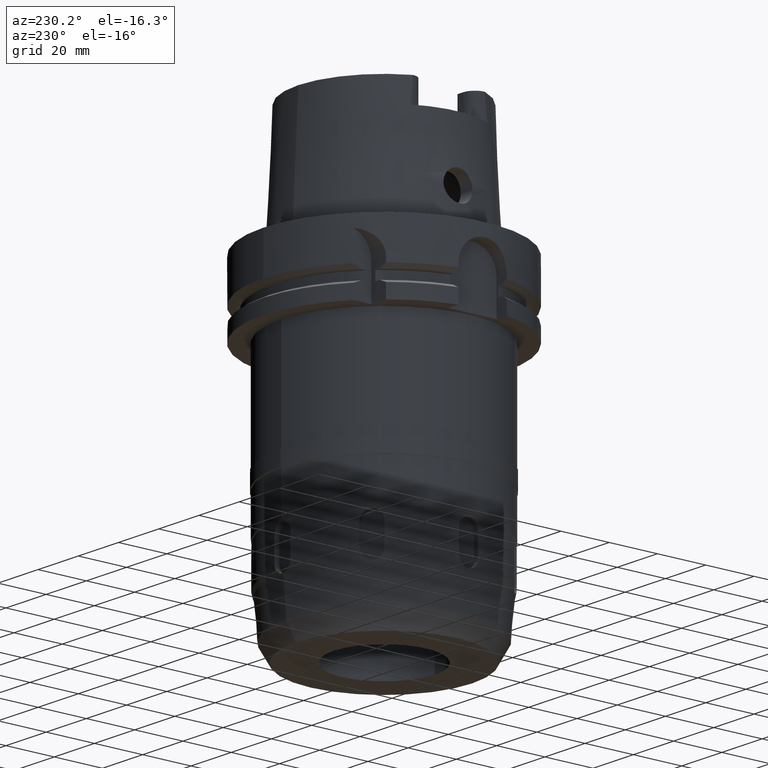
[diagram: clean part render]
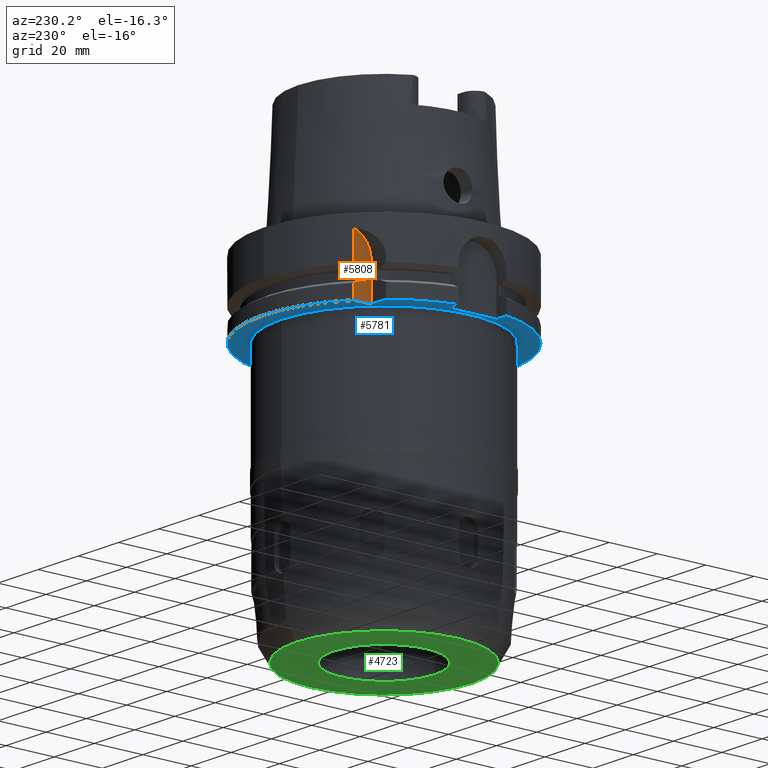
[diagram: same view with three faces highlighted in distinct colors, each labeled with its STEP entity id]
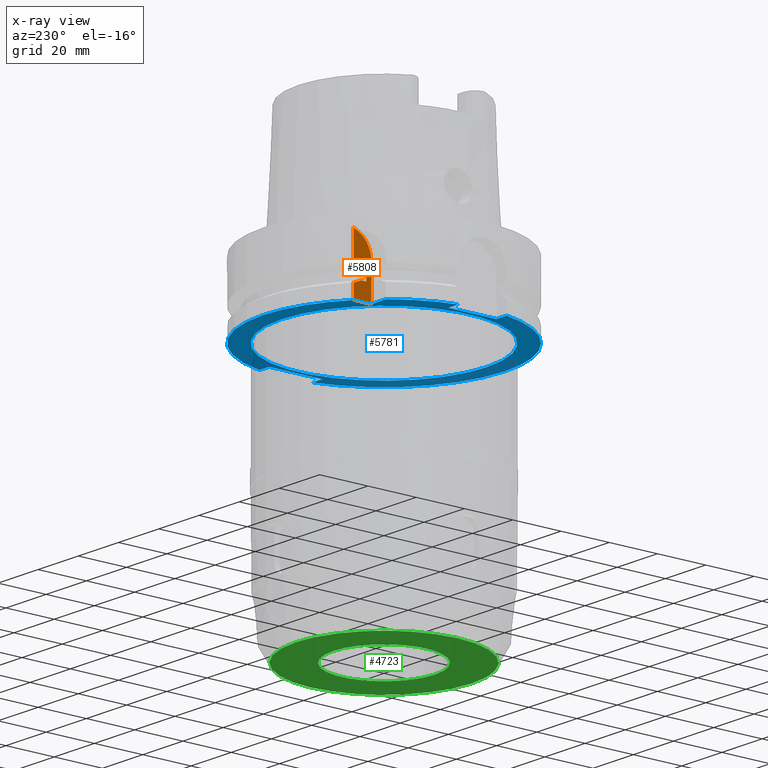
[diagram: x-ray of the same camera — body ghosted, the three highlighted faces saturated]
A machine part, auxiliary view with three faces highlighted in distinct colors.
The next image is the same camera in x-ray (body ghosted, the three faces saturated) — at least one of them is partly hidden behind the body in this view.
Their STEP definitions:

[orange] entity #5808 — the highlighted planar face has unit normal (1, 0, 0).
#2618=DIRECTION('',(4.798503851106E-14,1.E0,0.E0));
#2619=VECTOR('',#2618,7.329756630709E0);
#2620=CARTESIAN_POINT('',(-3.15E1,3.15E1,-2.9E1));
#2621=LINE('',#2620,#2619);
#2625=DIRECTION('',(-4.433903906541E-7,9.999999999999E-1,9.391792532212E-14));
#2626=VECTOR('',#2625,2.194015601002E0);
#2627=CARTESIAN_POINT('',(-3.15E1,3.352238058372E1,-1.8125E1));
#2628=LINE('',#2627,#2626);
#2632=CARTESIAN_POINT('',(-3.150000097281E1,3.571639618472E1,-1.8125E1));
#2633=CARTESIAN_POINT('',(-3.150000097281E1,3.606333863821E1,
-1.797477179943E1));
#2634=CARTESIAN_POINT('',(-3.150000002064E1,3.675646915239E1,
-1.767266204693E1));
#2635=CARTESIAN_POINT('',(-3.149999846856E1,3.779429574907E1,
-1.721518165955E1));
#2636=CARTESIAN_POINT('',(-3.150000355959E1,3.848477495946E1,
-1.690706900025E1));
#2637=CARTESIAN_POINT('',(-3.150000355959E1,3.882975374305E1,
-1.675239179145E1));
#2642=CARTESIAN_POINT('',(-3.15E1,4.15E1,-1.463689785921E1));
#2643=DIRECTION('',(1.E0,0.E0,0.E0));
#2644=DIRECTION('',(0.E0,-2.670243369290E-1,9.636897859206E-1));
#2645=AXIS2_PLACEMENT_3D('',#2642,#2643,#2644);
#2650=DIRECTION('',(6.188494047475E-7,5.020316378014E-7,-9.999999999997E-1));
#2651=VECTOR('',#2650,5.752391791881E0);
#2652=CARTESIAN_POINT('',(-3.150000355986E1,3.882975374283E1,
-2.324760820812E1));
#2653=LINE('',#2652,#2651);
#2815=DIRECTION('',(0.E0,0.E0,1.E0));
#2816=VECTOR('',#2815,1.436310214079E1);
#2817=CARTESIAN_POINT('',(-3.15E1,3.15E1,-2.9E1));
#2818=LINE('',#2817,#2816);
#2846=DIRECTION('',(-3.028823767049E-7,-2.457085509676E-7,-9.999999999999E-1));
#2847=VECTOR('',#2846,1.175239179145E1);
#2848=CARTESIAN_POINT('',(-3.15E1,3.882975663071E1,-5.000000000003E0));
#2849=LINE('',#2848,#2847);
#2966=DIRECTION('',(0.E0,0.E0,-1.E0));
#2967=VECTOR('',#2966,3.75E0);
#2968=CARTESIAN_POINT('',(-3.15E1,3.352238058372E1,-1.8125E1));
#2969=LINE('',#2968,#2967);
#2980=DIRECTION('',(-4.434271693799E-7,9.999999999999E-1,-9.229865077722E-14));
#2981=VECTOR('',#2980,2.194015600297E0);
#2982=CARTESIAN_POINT('',(-3.15E1,3.352238058372E1,-2.1875E1));
#2983=LINE('',#2982,#2981);
#3019=CARTESIAN_POINT('',(-3.150000097289E1,3.571639618402E1,-2.1875E1));
#3020=CARTESIAN_POINT('',(-3.150000097289E1,3.605789002737E1,
-2.202286891912E1));
#3021=CARTESIAN_POINT('',(-3.150000002063E1,3.674380017621E1,
-2.232173054124E1));
#3022=CARTESIAN_POINT('',(-3.149999846845E1,3.778158713267E1,
-2.277929841516E1));
#3023=CARTESIAN_POINT('',(-3.150000355986E1,3.847935690318E1,
-2.309050172011E1));
#3024=CARTESIAN_POINT('',(-3.150000355986E1,3.882975374283E1,
-2.324760820812E1));
#3867=CARTESIAN_POINT('',(-3.15E1,3.15E1,-2.9E1));
#3868=CARTESIAN_POINT('',(-3.15E1,3.882975663071E1,-2.9E1));
#3869=VERTEX_POINT('',#3867);
#3870=VERTEX_POINT('',#3868);
#3893=CARTESIAN_POINT('',(-3.150000355986E1,3.882975374283E1,
-2.324760820812E1));
#3894=VERTEX_POINT('',#3893);
#3895=VERTEX_POINT('',#3019);
#3896=CARTESIAN_POINT('',(-3.15E1,3.352238058372E1,-2.1875E1));
#3897=VERTEX_POINT('',#3896);
#3898=CARTESIAN_POINT('',(-3.15E1,3.352238058372E1,-1.8125E1));
#3899=VERTEX_POINT('',#3898);
#3900=CARTESIAN_POINT('',(-3.150000097281E1,3.571639618472E1,-1.8125E1));
#3901=VERTEX_POINT('',#3900);
#3902=VERTEX_POINT('',#2637);
#3903=CARTESIAN_POINT('',(-3.15E1,3.882975663071E1,-5.000000000003E0));
#3904=VERTEX_POINT('',#3903);
#3905=CARTESIAN_POINT('',(-3.15E1,3.15E1,-1.463689785921E1));
#3906=VERTEX_POINT('',#3905);
#5782=CARTESIAN_POINT('',(-3.15E1,0.E0,0.E0));
#5783=DIRECTION('',(1.E0,0.E0,0.E0));
#5784=DIRECTION('',(0.E0,0.E0,1.E0));
#5785=AXIS2_PLACEMENT_3D('',#5782,#5783,#5784);
#5786=PLANE('',#5785);
#5787=ORIENTED_EDGE('',*,*,#5749,.T.);
#5789=ORIENTED_EDGE('',*,*,#5788,.F.);
#5791=ORIENTED_EDGE('',*,*,#5790,.F.);
#5793=ORIENTED_EDGE('',*,*,#5792,.F.);
#5795=ORIENTED_EDGE('',*,*,#5794,.F.);
#5797=ORIENTED_EDGE('',*,*,#5796,.T.);
#5799=ORIENTED_EDGE('',*,*,#5798,.T.);
#5801=ORIENTED_EDGE('',*,*,#5800,.F.);
#5803=ORIENTED_EDGE('',*,*,#5802,.T.);
#5805=ORIENTED_EDGE('',*,*,#5804,.F.);
#5806=EDGE_LOOP('',(#5787,#5789,#5791,#5793,#5795,#5797,#5799,#5801,#5803,
#5805));
#5807=FACE_OUTER_BOUND('',#5806,.F.);
#2638=B_SPLINE_CURVE_WITH_KNOTS('',3,(#2632,#2633,#2634,#2635,#2636,#2637),
.UNSPECIFIED.,.F.,.F.,(4,1,1,4),(0.E0,3.333333333333E-1,6.666666666667E-1,1.E0),
.UNSPECIFIED.);
#2646=CIRCLE('',#2645,1.E1);
#3025=B_SPLINE_CURVE_WITH_KNOTS('',3,(#3019,#3020,#3021,#3022,#3023,#3024),
.UNSPECIFIED.,.F.,.F.,(4,1,1,4),(0.E0,3.333333333333E-1,6.666666666667E-1,1.E0),
.UNSPECIFIED.);
#5749=EDGE_CURVE('',#3869,#3870,#2621,.T.);
#5788=EDGE_CURVE('',#3894,#3870,#2653,.T.);
#5790=EDGE_CURVE('',#3895,#3894,#3025,.T.);
#5792=EDGE_CURVE('',#3897,#3895,#2983,.T.);
#5794=EDGE_CURVE('',#3899,#3897,#2969,.T.);
#5796=EDGE_CURVE('',#3899,#3901,#2628,.T.);
#5798=EDGE_CURVE('',#3901,#3902,#2638,.T.);
#5800=EDGE_CURVE('',#3904,#3902,#2849,.T.);
#5802=EDGE_CURVE('',#3904,#3906,#2646,.T.);
#5804=EDGE_CURVE('',#3869,#3906,#2818,.T.);
#5808=ADVANCED_FACE('',(#5807),#5786,.F.);

[blue] entity #5781 — the highlighted planar face has unit normal (0, 0, 1).
#2541=DIRECTION('',(-1.E0,-4.798503851106E-14,0.E0));
#2542=VECTOR('',#2541,7.329756630709E0);
#2543=CARTESIAN_POINT('',(-3.15E1,3.15E1,-2.9E1));
#2544=LINE('',#2543,#2542);
#2548=CARTESIAN_POINT('',(0.E0,0.E0,-2.9E1));
#2549=DIRECTION('',(0.E0,0.E0,1.E0));
#2550=DIRECTION('',(-7.765951326142E-1,6.3E-1,0.E0));
#2551=AXIS2_PLACEMENT_3D('',#2548,#2549,#2550);
#2556=DIRECTION('',(-1.E0,-4.627973610177E-14,0.E0));
#2557=VECTOR('',#2556,4.989794855662E0);
#2558=CARTESIAN_POINT('',(-4.4E1,-1.E1,-2.9E1));
#2559=LINE('',#2558,#2557);
#2563=CARTESIAN_POINT('',(0.E0,0.E0,-2.9E1));
#2564=DIRECTION('',(0.E0,0.E0,1.E0));
#2565=DIRECTION('',(-9.797958971133E-1,-2.E-1,0.E0));
#2566=AXIS2_PLACEMENT_3D('',#2563,#2564,#2565);
#2571=CARTESIAN_POINT('',(0.E0,0.E0,-2.9E1));
#2572=DIRECTION('',(0.E0,0.E0,1.E0));
#2573=DIRECTION('',(0.E0,-1.E0,0.E0));
#2574=AXIS2_PLACEMENT_3D('',#2571,#2572,#2573);
#2579=DIRECTION('',(-1.E0,-1.711257052401E-14,0.E0));
#2580=VECTOR('',#2579,4.774993593029E0);
#2581=CARTESIAN_POINT('',(4.877499359303E1,-1.1E1,-2.9E1));
#2582=LINE('',#2581,#2580);
#2586=CARTESIAN_POINT('',(0.E0,0.E0,-2.9E1));
#2587=DIRECTION('',(0.E0,0.E0,1.E0));
#2588=DIRECTION('',(9.754998718606E-1,2.2E-1,0.E0));
#2589=AXIS2_PLACEMENT_3D('',#2586,#2587,#2588);
#2594=CARTESIAN_POINT('',(0.E0,0.E0,-2.9E1));
#2595=DIRECTION('',(0.E0,0.E0,1.E0));
#2596=DIRECTION('',(0.E0,1.E0,0.E0));
#2597=AXIS2_PLACEMENT_3D('',#2594,#2595,#2596);
#2602=CARTESIAN_POINT('',(0.E0,0.E0,-2.9E1));
#2603=DIRECTION('',(0.E0,0.E0,-1.E0));
#2604=DIRECTION('',(0.E0,-1.E0,0.E0));
#2605=AXIS2_PLACEMENT_3D('',#2602,#2603,#2604);
#2610=CARTESIAN_POINT('',(0.E0,0.E0,-2.9E1));
#2611=DIRECTION('',(0.E0,0.E0,-1.E0));
#2612=DIRECTION('',(0.E0,1.E0,0.E0));
#2613=AXIS2_PLACEMENT_3D('',#2610,#2611,#2612);
#2618=DIRECTION('',(4.798503851106E-14,1.E0,0.E0));
#2619=VECTOR('',#2618,7.329756630709E0);
#2620=CARTESIAN_POINT('',(-3.15E1,3.15E1,-2.9E1));
#2621=LINE('',#2620,#2619);
#2664=DIRECTION('',(-1.E0,1.785659532940E-14,0.E0));
#2665=VECTOR('',#2664,4.774993593029E0);
#2666=CARTESIAN_POINT('',(4.877499359303E1,1.1E1,-2.9E1));
#2667=LINE('',#2666,#2665);
#2678=DIRECTION('',(0.E0,-1.E0,0.E0));
#2679=VECTOR('',#2678,2.2E1);
#2680=CARTESIAN_POINT('',(4.4E1,1.1E1,-2.9E1));
#2681=LINE('',#2680,#2679);
#2757=DIRECTION('',(0.E0,1.E0,0.E0));
#2758=VECTOR('',#2757,2.E1);
#2759=CARTESIAN_POINT('',(-4.4E1,-1.E1,-2.9E1));
#2760=LINE('',#2759,#2758);
#2780=DIRECTION('',(-1.E0,4.627973610177E-14,0.E0));
#2781=VECTOR('',#2780,4.989794855662E0);
#2782=CARTESIAN_POINT('',(-4.4E1,1.E1,-2.9E1));
#2783=LINE('',#2782,#2781);
#3863=CARTESIAN_POINT('',(0.E0,4.25E1,-2.9E1));
#3864=VERTEX_POINT('',#3863);
#3865=CARTESIAN_POINT('',(0.E0,-4.25E1,-2.9E1));
#3866=VERTEX_POINT('',#3865);
#3867=CARTESIAN_POINT('',(-3.15E1,3.15E1,-2.9E1));
#3868=CARTESIAN_POINT('',(-3.15E1,3.882975663071E1,-2.9E1));
#3869=VERTEX_POINT('',#3867);
#3870=VERTEX_POINT('',#3868);
#3871=CARTESIAN_POINT('',(-3.882975663071E1,3.15E1,-2.9E1));
#3872=VERTEX_POINT('',#3871);
#3873=CARTESIAN_POINT('',(-4.898979485566E1,1.E1,-2.9E1));
#3874=VERTEX_POINT('',#3873);
#3875=CARTESIAN_POINT('',(-4.4E1,1.E1,-2.9E1));
#3876=VERTEX_POINT('',#3875);
#3877=CARTESIAN_POINT('',(-4.4E1,-1.E1,-2.9E1));
#3878=VERTEX_POINT('',#3877);
#3879=CARTESIAN_POINT('',(-4.898979485566E1,-1.E1,-2.9E1));
#3880=VERTEX_POINT('',#3879);
#3881=CARTESIAN_POINT('',(-6.821749291191E-14,-5.E1,-2.9E1));
#3882=CARTESIAN_POINT('',(4.877499359303E1,-1.1E1,-2.9E1));
#3883=VERTEX_POINT('',#3881);
#3884=VERTEX_POINT('',#3882);
#3885=CARTESIAN_POINT('',(4.4E1,-1.1E1,-2.9E1));
#3886=VERTEX_POINT('',#3885);
#3887=CARTESIAN_POINT('',(4.4E1,1.1E1,-2.9E1));
#3888=VERTEX_POINT('',#3887);
#3889=CARTESIAN_POINT('',(4.877499359303E1,1.1E1,-2.9E1));
#3890=VERTEX_POINT('',#3889);
#3891=CARTESIAN_POINT('',(-6.019535474874E-14,5.E1,-2.9E1));
#3892=VERTEX_POINT('',#3891);
#5744=CARTESIAN_POINT('',(0.E0,0.E0,-2.9E1));
#5745=DIRECTION('',(0.E0,0.E0,1.E0));
#5746=DIRECTION('',(0.E0,1.E0,0.E0));
#5747=AXIS2_PLACEMENT_3D('',#5744,#5745,#5746);
#5748=PLANE('',#5747);
#5750=ORIENTED_EDGE('',*,*,#5749,.F.);
#5752=ORIENTED_EDGE('',*,*,#5751,.T.);
#5754=ORIENTED_EDGE('',*,*,#5753,.T.);
#5756=ORIENTED_EDGE('',*,*,#5755,.F.);
#5758=ORIENTED_EDGE('',*,*,#5757,.F.);
#5760=ORIENTED_EDGE('',*,*,#5759,.T.);
#5762=ORIENTED_EDGE('',*,*,#5761,.T.);
#5764=ORIENTED_EDGE('',*,*,#5763,.T.);
#5766=ORIENTED_EDGE('',*,*,#5765,.T.);
#5768=ORIENTED_EDGE('',*,*,#5767,.F.);
#5770=ORIENTED_EDGE('',*,*,#5769,.F.);
#5772=ORIENTED_EDGE('',*,*,#5771,.T.);
#5774=ORIENTED_EDGE('',*,*,#5773,.T.);
#5775=EDGE_LOOP('',(#5750,#5752,#5754,#5756,#5758,#5760,#5762,#5764,#5766,#5768,
#5770,#5772,#5774));
#5776=FACE_OUTER_BOUND('',#5775,.F.);
#5777=ORIENTED_EDGE('',*,*,#5737,.T.);
#5778=ORIENTED_EDGE('',*,*,#5726,.T.);
#5779=EDGE_LOOP('',(#5777,#5778));
#5780=FACE_BOUND('',#5779,.F.);
#2552=CIRCLE('',#2551,5.E1);
#2567=CIRCLE('',#2566,5.E1);
#2575=CIRCLE('',#2574,5.E1);
#2590=CIRCLE('',#2589,5.E1);
#2598=CIRCLE('',#2597,5.E1);
#2606=CIRCLE('',#2605,4.25E1);
#2614=CIRCLE('',#2613,4.25E1);
#5726=EDGE_CURVE('',#3864,#3866,#2614,.T.);
#5737=EDGE_CURVE('',#3866,#3864,#2606,.T.);
#5749=EDGE_CURVE('',#3869,#3870,#2621,.T.);
#5751=EDGE_CURVE('',#3869,#3872,#2544,.T.);
#5753=EDGE_CURVE('',#3872,#3874,#2552,.T.);
#5755=EDGE_CURVE('',#3876,#3874,#2783,.T.);
#5757=EDGE_CURVE('',#3878,#3876,#2760,.T.);
#5759=EDGE_CURVE('',#3878,#3880,#2559,.T.);
#5761=EDGE_CURVE('',#3880,#3883,#2567,.T.);
#5763=EDGE_CURVE('',#3883,#3884,#2575,.T.);
#5765=EDGE_CURVE('',#3884,#3886,#2582,.T.);
#5767=EDGE_CURVE('',#3888,#3886,#2681,.T.);
#5769=EDGE_CURVE('',#3890,#3888,#2667,.T.);
#5771=EDGE_CURVE('',#3890,#3892,#2590,.T.);
#5773=EDGE_CURVE('',#3892,#3870,#2598,.T.);
#5781=ADVANCED_FACE('',(#5776,#5780),#5748,.F.);

[green] entity #4723 — the highlighted planar face has unit normal (0, 0, 1).
#991=CARTESIAN_POINT('',(0.E0,0.E0,-1.35E2));
#992=DIRECTION('',(0.E0,0.E0,1.E0));
#993=DIRECTION('',(0.E0,-1.E0,0.E0));
#994=AXIS2_PLACEMENT_3D('',#991,#992,#993);
#999=CARTESIAN_POINT('',(0.E0,0.E0,-1.35E2));
#1000=DIRECTION('',(0.E0,0.E0,1.E0));
#1001=DIRECTION('',(0.E0,1.E0,0.E0));
#1002=AXIS2_PLACEMENT_3D('',#999,#1000,#1001);
#1007=CARTESIAN_POINT('',(0.E0,0.E0,-1.35E2));
#1008=DIRECTION('',(0.E0,0.E0,-1.E0));
#1009=DIRECTION('',(0.E0,-1.E0,0.E0));
#1010=AXIS2_PLACEMENT_3D('',#1007,#1008,#1009);
#1015=CARTESIAN_POINT('',(0.E0,0.E0,-1.35E2));
#1016=DIRECTION('',(0.E0,0.E0,-1.E0));
#1017=DIRECTION('',(0.E0,1.E0,0.E0));
#1018=AXIS2_PLACEMENT_3D('',#1015,#1016,#1017);
#3647=CARTESIAN_POINT('',(0.E0,2.1E1,-1.35E2));
#3648=VERTEX_POINT('',#3647);
#3649=CARTESIAN_POINT('',(0.E0,-2.1E1,-1.35E2));
#3650=VERTEX_POINT('',#3649);
#3651=CARTESIAN_POINT('',(0.E0,-3.65E1,-1.35E2));
#3652=CARTESIAN_POINT('',(0.E0,3.65E1,-1.35E2));
#3653=VERTEX_POINT('',#3651);
#3654=VERTEX_POINT('',#3652);
#4708=CARTESIAN_POINT('',(0.E0,0.E0,-1.35E2));
#4709=DIRECTION('',(0.E0,0.E0,1.E0));
#4710=DIRECTION('',(0.E0,1.E0,0.E0));
#4711=AXIS2_PLACEMENT_3D('',#4708,#4709,#4710);
#4712=PLANE('',#4711);
#4714=ORIENTED_EDGE('',*,*,#4713,.T.);
#4716=ORIENTED_EDGE('',*,*,#4715,.T.);
#4717=EDGE_LOOP('',(#4714,#4716));
#4718=FACE_OUTER_BOUND('',#4717,.F.);
#4719=ORIENTED_EDGE('',*,*,#4701,.T.);
#4720=ORIENTED_EDGE('',*,*,#4690,.T.);
#4721=EDGE_LOOP('',(#4719,#4720));
#4722=FACE_BOUND('',#4721,.F.);
#995=CIRCLE('',#994,3.65E1);
#1003=CIRCLE('',#1002,3.65E1);
#1011=CIRCLE('',#1010,2.1E1);
#1019=CIRCLE('',#1018,2.1E1);
#4690=EDGE_CURVE('',#3648,#3650,#1019,.T.);
#4701=EDGE_CURVE('',#3650,#3648,#1011,.T.);
#4713=EDGE_CURVE('',#3653,#3654,#995,.T.);
#4715=EDGE_CURVE('',#3654,#3653,#1003,.T.);
#4723=ADVANCED_FACE('',(#4718,#4722),#4712,.F.);